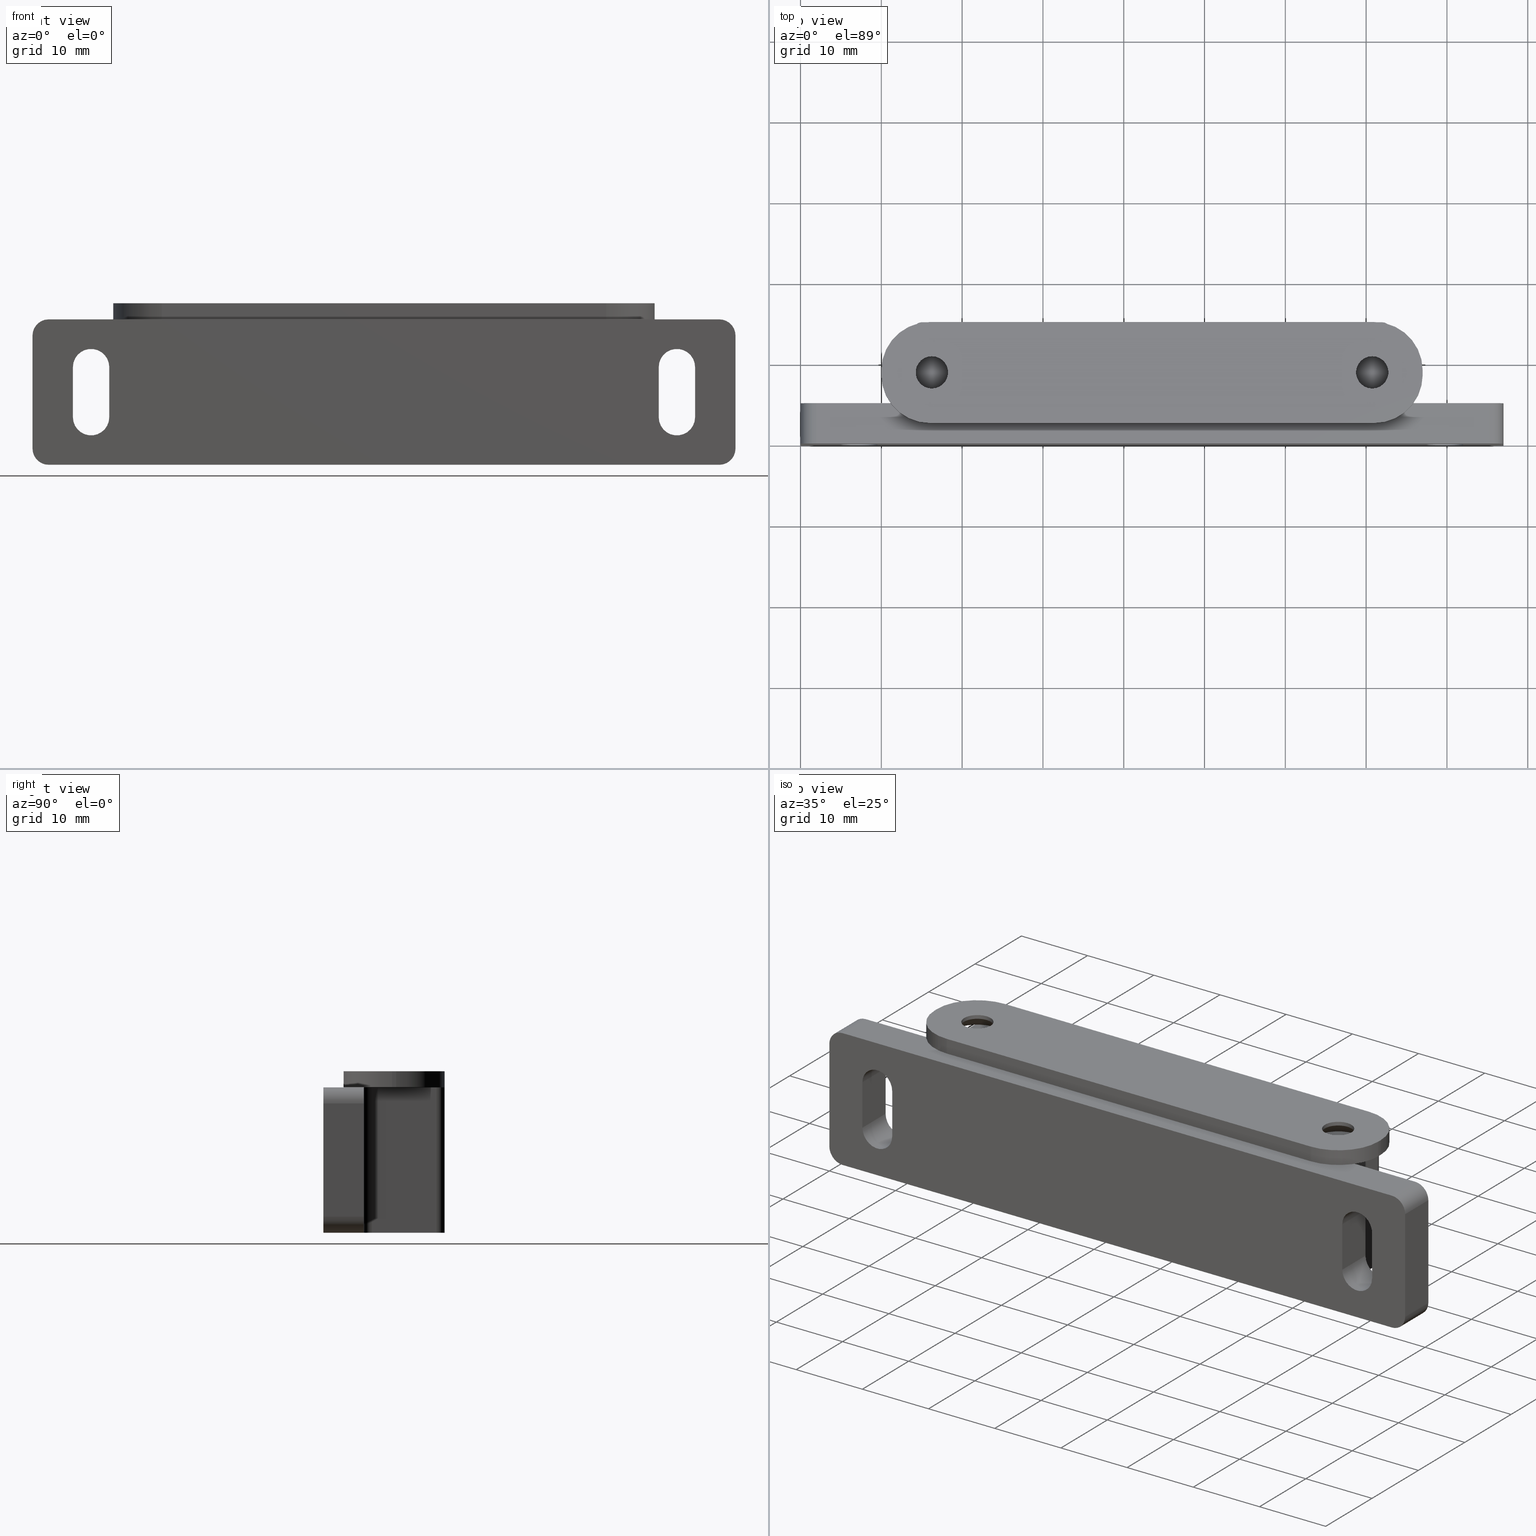
[diagram: canonical four-view strip — front | top / right | iso, engineering-drawing reading convention]
A machine part, canonical four-view strip (front | top / right | iso — engineering-drawing reading convention). The complete STEP part file that produces these views, byte-faithful:
ISO-10303-21;
HEADER;
/* Generated by software containing ST-Developer
 * from STEP Tools, Inc. (www.steptools.com) 
 */

FILE_DESCRIPTION(
/* description */ (''),
/* implementation_level */ '2;1');

FILE_NAME(
/* name */ 
'Q:\\Catalogo\\2_Accessori Dierre\\Per Download Web e catalogo cartace
o\\CATALOGO ACCESSORI PER RIPARI\\PAGINA 70\\CMGPE0000006.stp',
/* time_stamp */ '2018-11-07T12:01:39+01:00',
/* author */ ('fzagni'),
/* organization */ (''),
/* preprocessor_version */ 'ST-DEVELOPER v16.1',
/* originating_system */ 'Autodesk Inventor 2016',
/* authorisation */ '');

FILE_SCHEMA (('AUTOMOTIVE_DESIGN { 1 0 10303 214 3 1 1 }'));
ENDSEC;

DATA;
#10=MECHANICAL_DESIGN_GEOMETRIC_PRESENTATION_REPRESENTATION('',(#25,#26),
#1292);
#11=ITEM_DEFINED_TRANSFORMATION($,$,#755,#836);
#12=ITEM_DEFINED_TRANSFORMATION($,$,#806,#837);
#13=(
REPRESENTATION_RELATIONSHIP($,$,#1307,#1309)
REPRESENTATION_RELATIONSHIP_WITH_TRANSFORMATION(#11)
SHAPE_REPRESENTATION_RELATIONSHIP()
);
#14=(
REPRESENTATION_RELATIONSHIP($,$,#1308,#1309)
REPRESENTATION_RELATIONSHIP_WITH_TRANSFORMATION(#12)
SHAPE_REPRESENTATION_RELATIONSHIP()
);
#15=CONTEXT_DEPENDENT_SHAPE_REPRESENTATION(#13,#1305);
#16=CONTEXT_DEPENDENT_SHAPE_REPRESENTATION(#14,#1306);
#17=NEXT_ASSEMBLY_USAGE_OCCURRENCE('440000006615:1','440000006615:1',
'440000006615:1',#1313,#1311,'440000006615:1');
#18=NEXT_ASSEMBLY_USAGE_OCCURRENCE('440000006616:1','440000006616:1',
'440000006616:1',#1313,#1312,'440000006616:1');
#19=CONICAL_SURFACE('',#807,2.75,45.);
#20=CONICAL_SURFACE('',#812,2.75,45.);
#21=SHAPE_REPRESENTATION_RELATIONSHIP('SRR','None',#1307,#23);
#22=SHAPE_REPRESENTATION_RELATIONSHIP('SRR','None',#1308,#24);
#23=ADVANCED_BREP_SHAPE_REPRESENTATION('',(#27),#1289);
#24=ADVANCED_BREP_SHAPE_REPRESENTATION('',(#28),#1290);
#25=STYLED_ITEM('',(#1326),#27);
#26=STYLED_ITEM('',(#1327),#28);
#27=MANIFOLD_SOLID_BREP('Solido1',#753);
#28=MANIFOLD_SOLID_BREP('Solido1',#754);
#29=FACE_BOUND('',#104,.T.);
#30=FACE_BOUND('',#110,.T.);
#31=FACE_BOUND('',#129,.T.);
#32=FACE_BOUND('',#130,.T.);
#33=FACE_BOUND('',#132,.T.);
#34=FACE_BOUND('',#134,.T.);
#35=FACE_BOUND('',#136,.T.);
#36=FACE_BOUND('',#138,.T.);
#37=FACE_BOUND('',#142,.T.);
#38=FACE_BOUND('',#143,.T.);
#39=FACE_BOUND('',#151,.T.);
#40=FACE_BOUND('',#152,.T.);
#41=PLANE('',#759);
#42=PLANE('',#764);
#43=PLANE('',#770);
#44=PLANE('',#778);
#45=PLANE('',#779);
#46=PLANE('',#786);
#47=PLANE('',#788);
#48=PLANE('',#793);
#49=PLANE('',#796);
#50=PLANE('',#799);
#51=PLANE('',#802);
#52=PLANE('',#803);
#53=PLANE('',#804);
#54=PLANE('',#805);
#55=PLANE('',#820);
#56=PLANE('',#821);
#57=PLANE('',#827);
#58=PLANE('',#830);
#59=PLANE('',#833);
#60=PLANE('',#834);
#61=FACE_OUTER_BOUND('',#101,.T.);
#62=FACE_OUTER_BOUND('',#102,.T.);
#63=FACE_OUTER_BOUND('',#103,.T.);
#64=FACE_OUTER_BOUND('',#105,.T.);
#65=FACE_OUTER_BOUND('',#106,.T.);
#66=FACE_OUTER_BOUND('',#107,.T.);
#67=FACE_OUTER_BOUND('',#108,.T.);
#68=FACE_OUTER_BOUND('',#109,.T.);
#69=FACE_OUTER_BOUND('',#111,.T.);
#70=FACE_OUTER_BOUND('',#112,.T.);
#71=FACE_OUTER_BOUND('',#113,.T.);
#72=FACE_OUTER_BOUND('',#114,.T.);
#73=FACE_OUTER_BOUND('',#115,.T.);
#74=FACE_OUTER_BOUND('',#116,.T.);
#75=FACE_OUTER_BOUND('',#117,.T.);
#76=FACE_OUTER_BOUND('',#118,.T.);
#77=FACE_OUTER_BOUND('',#119,.T.);
#78=FACE_OUTER_BOUND('',#120,.T.);
#79=FACE_OUTER_BOUND('',#121,.T.);
#80=FACE_OUTER_BOUND('',#122,.T.);
#81=FACE_OUTER_BOUND('',#123,.T.);
#82=FACE_OUTER_BOUND('',#124,.T.);
#83=FACE_OUTER_BOUND('',#125,.T.);
#84=FACE_OUTER_BOUND('',#126,.T.);
#85=FACE_OUTER_BOUND('',#127,.T.);
#86=FACE_OUTER_BOUND('',#128,.T.);
#87=FACE_OUTER_BOUND('',#131,.T.);
#88=FACE_OUTER_BOUND('',#133,.T.);
#89=FACE_OUTER_BOUND('',#135,.T.);
#90=FACE_OUTER_BOUND('',#137,.T.);
#91=FACE_OUTER_BOUND('',#139,.T.);
#92=FACE_OUTER_BOUND('',#140,.T.);
#93=FACE_OUTER_BOUND('',#141,.T.);
#94=FACE_OUTER_BOUND('',#144,.T.);
#95=FACE_OUTER_BOUND('',#145,.T.);
#96=FACE_OUTER_BOUND('',#146,.T.);
#97=FACE_OUTER_BOUND('',#147,.T.);
#98=FACE_OUTER_BOUND('',#148,.T.);
#99=FACE_OUTER_BOUND('',#149,.T.);
#100=FACE_OUTER_BOUND('',#150,.T.);
#101=EDGE_LOOP('',(#491,#492,#493,#494));
#102=EDGE_LOOP('',(#495,#496,#497,#498,#499,#500,#501,#502,#503,#504,#505,
#506));
#103=EDGE_LOOP('',(#507,#508,#509,#510,#511,#512));
#104=EDGE_LOOP('',(#513,#514,#515,#516));
#105=EDGE_LOOP('',(#517,#518,#519,#520));
#106=EDGE_LOOP('',(#521,#522,#523,#524,#525,#526,#527,#528,#529,#530,#531,
#532));
#107=EDGE_LOOP('',(#533,#534,#535,#536));
#108=EDGE_LOOP('',(#537,#538,#539,#540));
#109=EDGE_LOOP('',(#541,#542,#543,#544,#545,#546));
#110=EDGE_LOOP('',(#547,#548,#549,#550));
#111=EDGE_LOOP('',(#551,#552,#553,#554));
#112=EDGE_LOOP('',(#555,#556,#557,#558));
#113=EDGE_LOOP('',(#559,#560,#561,#562));
#114=EDGE_LOOP('',(#563,#564,#565,#566));
#115=EDGE_LOOP('',(#567,#568,#569,#570));
#116=EDGE_LOOP('',(#571,#572,#573,#574));
#117=EDGE_LOOP('',(#575,#576,#577,#578));
#118=EDGE_LOOP('',(#579,#580,#581,#582));
#119=EDGE_LOOP('',(#583,#584,#585,#586));
#120=EDGE_LOOP('',(#587,#588,#589,#590));
#121=EDGE_LOOP('',(#591,#592,#593,#594));
#122=EDGE_LOOP('',(#595,#596,#597,#598));
#123=EDGE_LOOP('',(#599,#600,#601,#602));
#124=EDGE_LOOP('',(#603,#604,#605,#606));
#125=EDGE_LOOP('',(#607,#608,#609,#610));
#126=EDGE_LOOP('',(#611,#612,#613,#614));
#127=EDGE_LOOP('',(#615,#616,#617,#618));
#128=EDGE_LOOP('',(#619,#620,#621,#622,#623,#624,#625,#626));
#129=EDGE_LOOP('',(#627,#628,#629,#630));
#130=EDGE_LOOP('',(#631,#632,#633,#634));
#131=EDGE_LOOP('',(#635));
#132=EDGE_LOOP('',(#636));
#133=EDGE_LOOP('',(#637));
#134=EDGE_LOOP('',(#638));
#135=EDGE_LOOP('',(#639));
#136=EDGE_LOOP('',(#640));
#137=EDGE_LOOP('',(#641));
#138=EDGE_LOOP('',(#642));
#139=EDGE_LOOP('',(#643,#644,#645,#646));
#140=EDGE_LOOP('',(#647,#648,#649,#650));
#141=EDGE_LOOP('',(#651,#652,#653,#654,#655,#656,#657,#658));
#142=EDGE_LOOP('',(#659));
#143=EDGE_LOOP('',(#660));
#144=EDGE_LOOP('',(#661,#662,#663,#664));
#145=EDGE_LOOP('',(#665,#666,#667,#668));
#146=EDGE_LOOP('',(#669,#670,#671,#672));
#147=EDGE_LOOP('',(#673,#674,#675,#676));
#148=EDGE_LOOP('',(#677,#678,#679,#680));
#149=EDGE_LOOP('',(#681,#682,#683,#684));
#150=EDGE_LOOP('',(#685,#686,#687,#688,#689,#690,#691,#692));
#151=EDGE_LOOP('',(#693));
#152=EDGE_LOOP('',(#694));
#153=LINE('',#1074,#217);
#154=LINE('',#1077,#218);
#155=LINE('',#1080,#219);
#156=LINE('',#1084,#220);
#157=LINE('',#1088,#221);
#158=LINE('',#1092,#222);
#159=LINE('',#1096,#223);
#160=LINE('',#1098,#224);
#161=LINE('',#1099,#225);
#162=LINE('',#1102,#226);
#163=LINE('',#1106,#227);
#164=LINE('',#1107,#228);
#165=LINE('',#1112,#229);
#166=LINE('',#1115,#230);
#167=LINE('',#1120,#231);
#168=LINE('',#1121,#232);
#169=LINE('',#1124,#233);
#170=LINE('',#1126,#234);
#171=LINE('',#1128,#235);
#172=LINE('',#1132,#236);
#173=LINE('',#1136,#237);
#174=LINE('',#1140,#238);
#175=LINE('',#1146,#239);
#176=LINE('',#1150,#240);
#177=LINE('',#1152,#241);
#178=LINE('',#1153,#242);
#179=LINE('',#1155,#243);
#180=LINE('',#1161,#244);
#181=LINE('',#1164,#245);
#182=LINE('',#1168,#246);
#183=LINE('',#1169,#247);
#184=LINE('',#1171,#248);
#185=LINE('',#1173,#249);
#186=LINE('',#1175,#250);
#187=LINE('',#1177,#251);
#188=LINE('',#1183,#252);
#189=LINE('',#1184,#253);
#190=LINE('',#1187,#254);
#191=LINE('',#1188,#255);
#192=LINE('',#1192,#256);
#193=LINE('',#1194,#257);
#194=LINE('',#1199,#258);
#195=LINE('',#1200,#259);
#196=LINE('',#1203,#260);
#197=LINE('',#1204,#261);
#198=LINE('',#1208,#262);
#199=LINE('',#1210,#263);
#200=LINE('',#1212,#264);
#201=LINE('',#1237,#265);
#202=LINE('',#1240,#266);
#203=LINE('',#1243,#267);
#204=LINE('',#1245,#268);
#205=LINE('',#1246,#269);
#206=LINE('',#1249,#270);
#207=LINE('',#1253,#271);
#208=LINE('',#1257,#272);
#209=LINE('',#1262,#273);
#210=LINE('',#1265,#274);
#211=LINE('',#1266,#275);
#212=LINE('',#1271,#276);
#213=LINE('',#1272,#277);
#214=LINE('',#1274,#278);
#215=LINE('',#1278,#279);
#216=LINE('',#1280,#280);
#217=VECTOR('',#844,5.);
#218=VECTOR('',#847,5.);
#219=VECTOR('',#850,11.);
#220=VECTOR('',#853,7.99999999999998);
#221=VECTOR('',#856,57.);
#222=VECTOR('',#859,8.);
#223=VECTOR('',#862,11.);
#224=VECTOR('',#863,5.);
#225=VECTOR('',#864,83.);
#226=VECTOR('',#867,14.);
#227=VECTOR('',#870,11.);
#228=VECTOR('',#871,18.);
#229=VECTOR('',#874,6.2);
#230=VECTOR('',#877,6.2);
#231=VECTOR('',#882,5.);
#232=VECTOR('',#883,5.);
#233=VECTOR('',#886,83.);
#234=VECTOR('',#887,5.);
#235=VECTOR('',#888,11.);
#236=VECTOR('',#891,8.);
#237=VECTOR('',#894,57.);
#238=VECTOR('',#897,7.99999999999998);
#239=VECTOR('',#904,5.);
#240=VECTOR('',#909,14.);
#241=VECTOR('',#910,5.);
#242=VECTOR('',#911,14.);
#243=VECTOR('',#914,18.);
#244=VECTOR('',#919,6.2);
#245=VECTOR('',#922,6.2);
#246=VECTOR('',#929,18.);
#247=VECTOR('',#930,18.);
#248=VECTOR('',#933,18.);
#249=VECTOR('',#936,18.);
#250=VECTOR('',#939,18.);
#251=VECTOR('',#942,18.);
#252=VECTOR('',#949,5.);
#253=VECTOR('',#950,5.);
#254=VECTOR('',#953,6.2);
#255=VECTOR('',#954,5.);
#256=VECTOR('',#959,5.);
#257=VECTOR('',#962,6.2);
#258=VECTOR('',#967,5.);
#259=VECTOR('',#968,5.);
#260=VECTOR('',#971,6.2);
#261=VECTOR('',#972,5.);
#262=VECTOR('',#977,5.);
#263=VECTOR('',#980,6.2);
#264=VECTOR('',#983,14.);
#265=VECTOR('',#1014,2.);
#266=VECTOR('',#1017,2.);
#267=VECTOR('',#1020,0.499999999999998);
#268=VECTOR('',#1021,2.);
#269=VECTOR('',#1022,0.499999999999998);
#270=VECTOR('',#1025,55.);
#271=VECTOR('',#1028,0.499999999999998);
#272=VECTOR('',#1031,55.);
#273=VECTOR('',#1038,2.);
#274=VECTOR('',#1041,2.);
#275=VECTOR('',#1042,55.);
#276=VECTOR('',#1047,2.);
#277=VECTOR('',#1048,2.);
#278=VECTOR('',#1051,55.);
#279=VECTOR('',#1056,2.);
#280=VECTOR('',#1059,0.499999999999998);
#281=CIRCLE('',#757,2.);
#282=CIRCLE('',#758,2.);
#283=CIRCLE('',#760,1.);
#284=CIRCLE('',#761,1.);
#285=CIRCLE('',#762,1.);
#286=CIRCLE('',#763,1.);
#287=CIRCLE('',#765,2.);
#288=CIRCLE('',#766,2.25);
#289=CIRCLE('',#767,2.25);
#290=CIRCLE('',#769,2.);
#291=CIRCLE('',#771,1.);
#292=CIRCLE('',#772,1.);
#293=CIRCLE('',#773,1.);
#294=CIRCLE('',#774,1.);
#295=CIRCLE('',#776,2.);
#296=CIRCLE('',#777,2.);
#297=CIRCLE('',#780,2.);
#298=CIRCLE('',#781,2.25);
#299=CIRCLE('',#782,2.25);
#300=CIRCLE('',#784,2.);
#301=CIRCLE('',#792,2.25);
#302=CIRCLE('',#795,2.25);
#303=CIRCLE('',#798,2.25);
#304=CIRCLE('',#801,2.25);
#305=CIRCLE('',#808,3.5);
#306=CIRCLE('',#809,2.);
#307=CIRCLE('',#811,2.);
#308=CIRCLE('',#813,3.5);
#309=CIRCLE('',#814,2.);
#310=CIRCLE('',#816,2.);
#311=CIRCLE('',#818,6.);
#312=CIRCLE('',#819,6.);
#313=CIRCLE('',#822,6.);
#314=CIRCLE('',#823,6.);
#315=CIRCLE('',#824,6.);
#316=CIRCLE('',#826,6.);
#317=CIRCLE('',#829,6.);
#318=CIRCLE('',#832,6.);
#319=VERTEX_POINT('',#1070);
#320=VERTEX_POINT('',#1071);
#321=VERTEX_POINT('',#1073);
#322=VERTEX_POINT('',#1075);
#323=VERTEX_POINT('',#1079);
#324=VERTEX_POINT('',#1081);
#325=VERTEX_POINT('',#1083);
#326=VERTEX_POINT('',#1085);
#327=VERTEX_POINT('',#1087);
#328=VERTEX_POINT('',#1089);
#329=VERTEX_POINT('',#1091);
#330=VERTEX_POINT('',#1093);
#331=VERTEX_POINT('',#1095);
#332=VERTEX_POINT('',#1097);
#333=VERTEX_POINT('',#1101);
#334=VERTEX_POINT('',#1103);
#335=VERTEX_POINT('',#1105);
#336=VERTEX_POINT('',#1108);
#337=VERTEX_POINT('',#1109);
#338=VERTEX_POINT('',#1111);
#339=VERTEX_POINT('',#1113);
#340=VERTEX_POINT('',#1117);
#341=VERTEX_POINT('',#1118);
#342=VERTEX_POINT('',#1123);
#343=VERTEX_POINT('',#1125);
#344=VERTEX_POINT('',#1127);
#345=VERTEX_POINT('',#1129);
#346=VERTEX_POINT('',#1131);
#347=VERTEX_POINT('',#1133);
#348=VERTEX_POINT('',#1135);
#349=VERTEX_POINT('',#1137);
#350=VERTEX_POINT('',#1139);
#351=VERTEX_POINT('',#1143);
#352=VERTEX_POINT('',#1145);
#353=VERTEX_POINT('',#1149);
#354=VERTEX_POINT('',#1151);
#355=VERTEX_POINT('',#1157);
#356=VERTEX_POINT('',#1158);
#357=VERTEX_POINT('',#1160);
#358=VERTEX_POINT('',#1162);
#359=VERTEX_POINT('',#1180);
#360=VERTEX_POINT('',#1181);
#361=VERTEX_POINT('',#1186);
#362=VERTEX_POINT('',#1190);
#363=VERTEX_POINT('',#1196);
#364=VERTEX_POINT('',#1197);
#365=VERTEX_POINT('',#1202);
#366=VERTEX_POINT('',#1206);
#367=VERTEX_POINT('',#1217);
#368=VERTEX_POINT('',#1219);
#369=VERTEX_POINT('',#1222);
#370=VERTEX_POINT('',#1225);
#371=VERTEX_POINT('',#1227);
#372=VERTEX_POINT('',#1230);
#373=VERTEX_POINT('',#1233);
#374=VERTEX_POINT('',#1234);
#375=VERTEX_POINT('',#1236);
#376=VERTEX_POINT('',#1238);
#377=VERTEX_POINT('',#1242);
#378=VERTEX_POINT('',#1244);
#379=VERTEX_POINT('',#1248);
#380=VERTEX_POINT('',#1250);
#381=VERTEX_POINT('',#1252);
#382=VERTEX_POINT('',#1254);
#383=VERTEX_POINT('',#1256);
#384=VERTEX_POINT('',#1260);
#385=VERTEX_POINT('',#1264);
#386=VERTEX_POINT('',#1268);
#387=VERTEX_POINT('',#1269);
#388=VERTEX_POINT('',#1276);
#389=EDGE_CURVE('',#319,#320,#281,.T.);
#390=EDGE_CURVE('',#320,#321,#153,.T.);
#391=EDGE_CURVE('',#321,#322,#282,.T.);
#392=EDGE_CURVE('',#322,#319,#154,.T.);
#393=EDGE_CURVE('',#323,#322,#155,.T.);
#394=EDGE_CURVE('',#324,#323,#283,.T.);
#395=EDGE_CURVE('',#325,#324,#156,.T.);
#396=EDGE_CURVE('',#326,#325,#284,.T.);
#397=EDGE_CURVE('',#327,#326,#157,.T.);
#398=EDGE_CURVE('',#328,#327,#285,.T.);
#399=EDGE_CURVE('',#329,#328,#158,.T.);
#400=EDGE_CURVE('',#330,#329,#286,.T.);
#401=EDGE_CURVE('',#331,#330,#159,.T.);
#402=EDGE_CURVE('',#332,#331,#160,.T.);
#403=EDGE_CURVE('',#319,#332,#161,.T.);
#404=EDGE_CURVE('',#321,#333,#162,.T.);
#405=EDGE_CURVE('',#334,#333,#287,.T.);
#406=EDGE_CURVE('',#335,#334,#163,.T.);
#407=EDGE_CURVE('',#323,#335,#164,.T.);
#408=EDGE_CURVE('',#336,#337,#288,.T.);
#409=EDGE_CURVE('',#337,#338,#165,.T.);
#410=EDGE_CURVE('',#338,#339,#289,.T.);
#411=EDGE_CURVE('',#339,#336,#166,.T.);
#412=EDGE_CURVE('',#340,#341,#290,.T.);
#413=EDGE_CURVE('',#341,#334,#167,.T.);
#414=EDGE_CURVE('',#333,#340,#168,.T.);
#415=EDGE_CURVE('',#341,#342,#169,.T.);
#416=EDGE_CURVE('',#343,#342,#170,.T.);
#417=EDGE_CURVE('',#343,#344,#171,.T.);
#418=EDGE_CURVE('',#345,#344,#291,.T.);
#419=EDGE_CURVE('',#345,#346,#172,.T.);
#420=EDGE_CURVE('',#347,#346,#292,.T.);
#421=EDGE_CURVE('',#347,#348,#173,.T.);
#422=EDGE_CURVE('',#349,#348,#293,.T.);
#423=EDGE_CURVE('',#349,#350,#174,.T.);
#424=EDGE_CURVE('',#335,#350,#294,.T.);
#425=EDGE_CURVE('',#331,#351,#295,.T.);
#426=EDGE_CURVE('',#351,#352,#175,.T.);
#427=EDGE_CURVE('',#352,#332,#296,.T.);
#428=EDGE_CURVE('',#351,#353,#176,.T.);
#429=EDGE_CURVE('',#354,#353,#177,.T.);
#430=EDGE_CURVE('',#352,#354,#178,.T.);
#431=EDGE_CURVE('',#344,#330,#179,.T.);
#432=EDGE_CURVE('',#353,#343,#297,.T.);
#433=EDGE_CURVE('',#355,#356,#298,.T.);
#434=EDGE_CURVE('',#356,#357,#180,.T.);
#435=EDGE_CURVE('',#357,#358,#299,.T.);
#436=EDGE_CURVE('',#358,#355,#181,.T.);
#437=EDGE_CURVE('',#342,#354,#300,.T.);
#438=EDGE_CURVE('',#348,#326,#182,.T.);
#439=EDGE_CURVE('',#325,#349,#183,.T.);
#440=EDGE_CURVE('',#350,#324,#184,.T.);
#441=EDGE_CURVE('',#329,#345,#185,.T.);
#442=EDGE_CURVE('',#346,#328,#186,.T.);
#443=EDGE_CURVE('',#327,#347,#187,.T.);
#444=EDGE_CURVE('',#359,#360,#301,.T.);
#445=EDGE_CURVE('',#358,#359,#188,.T.);
#446=EDGE_CURVE('',#357,#360,#189,.T.);
#447=EDGE_CURVE('',#360,#361,#190,.T.);
#448=EDGE_CURVE('',#356,#361,#191,.T.);
#449=EDGE_CURVE('',#361,#362,#302,.T.);
#450=EDGE_CURVE('',#355,#362,#192,.T.);
#451=EDGE_CURVE('',#362,#359,#193,.T.);
#452=EDGE_CURVE('',#363,#364,#303,.T.);
#453=EDGE_CURVE('',#339,#363,#194,.T.);
#454=EDGE_CURVE('',#338,#364,#195,.T.);
#455=EDGE_CURVE('',#364,#365,#196,.T.);
#456=EDGE_CURVE('',#337,#365,#197,.T.);
#457=EDGE_CURVE('',#365,#366,#304,.T.);
#458=EDGE_CURVE('',#336,#366,#198,.T.);
#459=EDGE_CURVE('',#366,#363,#199,.T.);
#460=EDGE_CURVE('',#320,#340,#200,.T.);
#461=EDGE_CURVE('',#367,#367,#305,.T.);
#462=EDGE_CURVE('',#368,#368,#306,.T.);
#463=EDGE_CURVE('',#369,#369,#307,.T.);
#464=EDGE_CURVE('',#370,#370,#308,.T.);
#465=EDGE_CURVE('',#371,#371,#309,.T.);
#466=EDGE_CURVE('',#372,#372,#310,.T.);
#467=EDGE_CURVE('',#373,#374,#311,.T.);
#468=EDGE_CURVE('',#374,#375,#201,.T.);
#469=EDGE_CURVE('',#375,#376,#312,.T.);
#470=EDGE_CURVE('',#376,#373,#202,.T.);
#471=EDGE_CURVE('',#376,#377,#203,.T.);
#472=EDGE_CURVE('',#378,#377,#204,.T.);
#473=EDGE_CURVE('',#373,#378,#205,.T.);
#474=EDGE_CURVE('',#379,#375,#206,.T.);
#475=EDGE_CURVE('',#380,#379,#313,.T.);
#476=EDGE_CURVE('',#381,#380,#207,.T.);
#477=EDGE_CURVE('',#382,#381,#314,.T.);
#478=EDGE_CURVE('',#383,#382,#208,.T.);
#479=EDGE_CURVE('',#377,#383,#315,.T.);
#480=EDGE_CURVE('',#384,#378,#316,.T.);
#481=EDGE_CURVE('',#383,#384,#209,.T.);
#482=EDGE_CURVE('',#385,#382,#210,.T.);
#483=EDGE_CURVE('',#384,#385,#211,.T.);
#484=EDGE_CURVE('',#386,#387,#317,.T.);
#485=EDGE_CURVE('',#387,#380,#212,.T.);
#486=EDGE_CURVE('',#379,#386,#213,.T.);
#487=EDGE_CURVE('',#386,#374,#214,.T.);
#488=EDGE_CURVE('',#388,#385,#318,.T.);
#489=EDGE_CURVE('',#381,#388,#215,.T.);
#490=EDGE_CURVE('',#388,#387,#216,.T.);
#491=ORIENTED_EDGE('',*,*,#389,.T.);
#492=ORIENTED_EDGE('',*,*,#390,.T.);
#493=ORIENTED_EDGE('',*,*,#391,.T.);
#494=ORIENTED_EDGE('',*,*,#392,.T.);
#495=ORIENTED_EDGE('',*,*,#392,.F.);
#496=ORIENTED_EDGE('',*,*,#393,.F.);
#497=ORIENTED_EDGE('',*,*,#394,.F.);
#498=ORIENTED_EDGE('',*,*,#395,.F.);
#499=ORIENTED_EDGE('',*,*,#396,.F.);
#500=ORIENTED_EDGE('',*,*,#397,.F.);
#501=ORIENTED_EDGE('',*,*,#398,.F.);
#502=ORIENTED_EDGE('',*,*,#399,.F.);
#503=ORIENTED_EDGE('',*,*,#400,.F.);
#504=ORIENTED_EDGE('',*,*,#401,.F.);
#505=ORIENTED_EDGE('',*,*,#402,.F.);
#506=ORIENTED_EDGE('',*,*,#403,.F.);
#507=ORIENTED_EDGE('',*,*,#391,.F.);
#508=ORIENTED_EDGE('',*,*,#404,.T.);
#509=ORIENTED_EDGE('',*,*,#405,.F.);
#510=ORIENTED_EDGE('',*,*,#406,.F.);
#511=ORIENTED_EDGE('',*,*,#407,.F.);
#512=ORIENTED_EDGE('',*,*,#393,.T.);
#513=ORIENTED_EDGE('',*,*,#408,.T.);
#514=ORIENTED_EDGE('',*,*,#409,.T.);
#515=ORIENTED_EDGE('',*,*,#410,.T.);
#516=ORIENTED_EDGE('',*,*,#411,.T.);
#517=ORIENTED_EDGE('',*,*,#412,.T.);
#518=ORIENTED_EDGE('',*,*,#413,.T.);
#519=ORIENTED_EDGE('',*,*,#405,.T.);
#520=ORIENTED_EDGE('',*,*,#414,.T.);
#521=ORIENTED_EDGE('',*,*,#413,.F.);
#522=ORIENTED_EDGE('',*,*,#415,.T.);
#523=ORIENTED_EDGE('',*,*,#416,.F.);
#524=ORIENTED_EDGE('',*,*,#417,.T.);
#525=ORIENTED_EDGE('',*,*,#418,.F.);
#526=ORIENTED_EDGE('',*,*,#419,.T.);
#527=ORIENTED_EDGE('',*,*,#420,.F.);
#528=ORIENTED_EDGE('',*,*,#421,.T.);
#529=ORIENTED_EDGE('',*,*,#422,.F.);
#530=ORIENTED_EDGE('',*,*,#423,.T.);
#531=ORIENTED_EDGE('',*,*,#424,.F.);
#532=ORIENTED_EDGE('',*,*,#406,.T.);
#533=ORIENTED_EDGE('',*,*,#425,.T.);
#534=ORIENTED_EDGE('',*,*,#426,.T.);
#535=ORIENTED_EDGE('',*,*,#427,.T.);
#536=ORIENTED_EDGE('',*,*,#402,.T.);
#537=ORIENTED_EDGE('',*,*,#426,.F.);
#538=ORIENTED_EDGE('',*,*,#428,.T.);
#539=ORIENTED_EDGE('',*,*,#429,.F.);
#540=ORIENTED_EDGE('',*,*,#430,.F.);
#541=ORIENTED_EDGE('',*,*,#425,.F.);
#542=ORIENTED_EDGE('',*,*,#401,.T.);
#543=ORIENTED_EDGE('',*,*,#431,.F.);
#544=ORIENTED_EDGE('',*,*,#417,.F.);
#545=ORIENTED_EDGE('',*,*,#432,.F.);
#546=ORIENTED_EDGE('',*,*,#428,.F.);
#547=ORIENTED_EDGE('',*,*,#433,.T.);
#548=ORIENTED_EDGE('',*,*,#434,.T.);
#549=ORIENTED_EDGE('',*,*,#435,.T.);
#550=ORIENTED_EDGE('',*,*,#436,.T.);
#551=ORIENTED_EDGE('',*,*,#432,.T.);
#552=ORIENTED_EDGE('',*,*,#416,.T.);
#553=ORIENTED_EDGE('',*,*,#437,.T.);
#554=ORIENTED_EDGE('',*,*,#429,.T.);
#555=ORIENTED_EDGE('',*,*,#422,.T.);
#556=ORIENTED_EDGE('',*,*,#438,.T.);
#557=ORIENTED_EDGE('',*,*,#396,.T.);
#558=ORIENTED_EDGE('',*,*,#439,.T.);
#559=ORIENTED_EDGE('',*,*,#439,.F.);
#560=ORIENTED_EDGE('',*,*,#395,.T.);
#561=ORIENTED_EDGE('',*,*,#440,.F.);
#562=ORIENTED_EDGE('',*,*,#423,.F.);
#563=ORIENTED_EDGE('',*,*,#400,.T.);
#564=ORIENTED_EDGE('',*,*,#441,.T.);
#565=ORIENTED_EDGE('',*,*,#418,.T.);
#566=ORIENTED_EDGE('',*,*,#431,.T.);
#567=ORIENTED_EDGE('',*,*,#441,.F.);
#568=ORIENTED_EDGE('',*,*,#399,.T.);
#569=ORIENTED_EDGE('',*,*,#442,.F.);
#570=ORIENTED_EDGE('',*,*,#419,.F.);
#571=ORIENTED_EDGE('',*,*,#420,.T.);
#572=ORIENTED_EDGE('',*,*,#442,.T.);
#573=ORIENTED_EDGE('',*,*,#398,.T.);
#574=ORIENTED_EDGE('',*,*,#443,.T.);
#575=ORIENTED_EDGE('',*,*,#394,.T.);
#576=ORIENTED_EDGE('',*,*,#407,.T.);
#577=ORIENTED_EDGE('',*,*,#424,.T.);
#578=ORIENTED_EDGE('',*,*,#440,.T.);
#579=ORIENTED_EDGE('',*,*,#444,.F.);
#580=ORIENTED_EDGE('',*,*,#445,.F.);
#581=ORIENTED_EDGE('',*,*,#435,.F.);
#582=ORIENTED_EDGE('',*,*,#446,.T.);
#583=ORIENTED_EDGE('',*,*,#447,.F.);
#584=ORIENTED_EDGE('',*,*,#446,.F.);
#585=ORIENTED_EDGE('',*,*,#434,.F.);
#586=ORIENTED_EDGE('',*,*,#448,.T.);
#587=ORIENTED_EDGE('',*,*,#449,.F.);
#588=ORIENTED_EDGE('',*,*,#448,.F.);
#589=ORIENTED_EDGE('',*,*,#433,.F.);
#590=ORIENTED_EDGE('',*,*,#450,.T.);
#591=ORIENTED_EDGE('',*,*,#451,.F.);
#592=ORIENTED_EDGE('',*,*,#450,.F.);
#593=ORIENTED_EDGE('',*,*,#436,.F.);
#594=ORIENTED_EDGE('',*,*,#445,.T.);
#595=ORIENTED_EDGE('',*,*,#452,.F.);
#596=ORIENTED_EDGE('',*,*,#453,.F.);
#597=ORIENTED_EDGE('',*,*,#410,.F.);
#598=ORIENTED_EDGE('',*,*,#454,.T.);
#599=ORIENTED_EDGE('',*,*,#455,.F.);
#600=ORIENTED_EDGE('',*,*,#454,.F.);
#601=ORIENTED_EDGE('',*,*,#409,.F.);
#602=ORIENTED_EDGE('',*,*,#456,.T.);
#603=ORIENTED_EDGE('',*,*,#457,.F.);
#604=ORIENTED_EDGE('',*,*,#456,.F.);
#605=ORIENTED_EDGE('',*,*,#408,.F.);
#606=ORIENTED_EDGE('',*,*,#458,.T.);
#607=ORIENTED_EDGE('',*,*,#459,.F.);
#608=ORIENTED_EDGE('',*,*,#458,.F.);
#609=ORIENTED_EDGE('',*,*,#411,.F.);
#610=ORIENTED_EDGE('',*,*,#453,.T.);
#611=ORIENTED_EDGE('',*,*,#390,.F.);
#612=ORIENTED_EDGE('',*,*,#460,.T.);
#613=ORIENTED_EDGE('',*,*,#414,.F.);
#614=ORIENTED_EDGE('',*,*,#404,.F.);
#615=ORIENTED_EDGE('',*,*,#438,.F.);
#616=ORIENTED_EDGE('',*,*,#421,.F.);
#617=ORIENTED_EDGE('',*,*,#443,.F.);
#618=ORIENTED_EDGE('',*,*,#397,.T.);
#619=ORIENTED_EDGE('',*,*,#389,.F.);
#620=ORIENTED_EDGE('',*,*,#403,.T.);
#621=ORIENTED_EDGE('',*,*,#427,.F.);
#622=ORIENTED_EDGE('',*,*,#430,.T.);
#623=ORIENTED_EDGE('',*,*,#437,.F.);
#624=ORIENTED_EDGE('',*,*,#415,.F.);
#625=ORIENTED_EDGE('',*,*,#412,.F.);
#626=ORIENTED_EDGE('',*,*,#460,.F.);
#627=ORIENTED_EDGE('',*,*,#449,.T.);
#628=ORIENTED_EDGE('',*,*,#451,.T.);
#629=ORIENTED_EDGE('',*,*,#444,.T.);
#630=ORIENTED_EDGE('',*,*,#447,.T.);
#631=ORIENTED_EDGE('',*,*,#457,.T.);
#632=ORIENTED_EDGE('',*,*,#459,.T.);
#633=ORIENTED_EDGE('',*,*,#452,.T.);
#634=ORIENTED_EDGE('',*,*,#455,.T.);
#635=ORIENTED_EDGE('',*,*,#461,.F.);
#636=ORIENTED_EDGE('',*,*,#462,.F.);
#637=ORIENTED_EDGE('',*,*,#463,.F.);
#638=ORIENTED_EDGE('',*,*,#462,.T.);
#639=ORIENTED_EDGE('',*,*,#464,.F.);
#640=ORIENTED_EDGE('',*,*,#465,.F.);
#641=ORIENTED_EDGE('',*,*,#466,.F.);
#642=ORIENTED_EDGE('',*,*,#465,.T.);
#643=ORIENTED_EDGE('',*,*,#467,.T.);
#644=ORIENTED_EDGE('',*,*,#468,.T.);
#645=ORIENTED_EDGE('',*,*,#469,.T.);
#646=ORIENTED_EDGE('',*,*,#470,.T.);
#647=ORIENTED_EDGE('',*,*,#470,.F.);
#648=ORIENTED_EDGE('',*,*,#471,.T.);
#649=ORIENTED_EDGE('',*,*,#472,.F.);
#650=ORIENTED_EDGE('',*,*,#473,.F.);
#651=ORIENTED_EDGE('',*,*,#469,.F.);
#652=ORIENTED_EDGE('',*,*,#474,.F.);
#653=ORIENTED_EDGE('',*,*,#475,.F.);
#654=ORIENTED_EDGE('',*,*,#476,.F.);
#655=ORIENTED_EDGE('',*,*,#477,.F.);
#656=ORIENTED_EDGE('',*,*,#478,.F.);
#657=ORIENTED_EDGE('',*,*,#479,.F.);
#658=ORIENTED_EDGE('',*,*,#471,.F.);
#659=ORIENTED_EDGE('',*,*,#463,.T.);
#660=ORIENTED_EDGE('',*,*,#466,.T.);
#661=ORIENTED_EDGE('',*,*,#480,.T.);
#662=ORIENTED_EDGE('',*,*,#472,.T.);
#663=ORIENTED_EDGE('',*,*,#479,.T.);
#664=ORIENTED_EDGE('',*,*,#481,.T.);
#665=ORIENTED_EDGE('',*,*,#481,.F.);
#666=ORIENTED_EDGE('',*,*,#478,.T.);
#667=ORIENTED_EDGE('',*,*,#482,.F.);
#668=ORIENTED_EDGE('',*,*,#483,.F.);
#669=ORIENTED_EDGE('',*,*,#484,.T.);
#670=ORIENTED_EDGE('',*,*,#485,.T.);
#671=ORIENTED_EDGE('',*,*,#475,.T.);
#672=ORIENTED_EDGE('',*,*,#486,.T.);
#673=ORIENTED_EDGE('',*,*,#468,.F.);
#674=ORIENTED_EDGE('',*,*,#487,.F.);
#675=ORIENTED_EDGE('',*,*,#486,.F.);
#676=ORIENTED_EDGE('',*,*,#474,.T.);
#677=ORIENTED_EDGE('',*,*,#488,.T.);
#678=ORIENTED_EDGE('',*,*,#482,.T.);
#679=ORIENTED_EDGE('',*,*,#477,.T.);
#680=ORIENTED_EDGE('',*,*,#489,.T.);
#681=ORIENTED_EDGE('',*,*,#485,.F.);
#682=ORIENTED_EDGE('',*,*,#490,.F.);
#683=ORIENTED_EDGE('',*,*,#489,.F.);
#684=ORIENTED_EDGE('',*,*,#476,.T.);
#685=ORIENTED_EDGE('',*,*,#467,.F.);
#686=ORIENTED_EDGE('',*,*,#473,.T.);
#687=ORIENTED_EDGE('',*,*,#480,.F.);
#688=ORIENTED_EDGE('',*,*,#483,.T.);
#689=ORIENTED_EDGE('',*,*,#488,.F.);
#690=ORIENTED_EDGE('',*,*,#490,.T.);
#691=ORIENTED_EDGE('',*,*,#484,.F.);
#692=ORIENTED_EDGE('',*,*,#487,.T.);
#693=ORIENTED_EDGE('',*,*,#461,.T.);
#694=ORIENTED_EDGE('',*,*,#464,.T.);
#695=CYLINDRICAL_SURFACE('',#756,2.);
#696=CYLINDRICAL_SURFACE('',#768,2.);
#697=CYLINDRICAL_SURFACE('',#775,2.);
#698=CYLINDRICAL_SURFACE('',#783,2.);
#699=CYLINDRICAL_SURFACE('',#785,1.);
#700=CYLINDRICAL_SURFACE('',#787,1.);
#701=CYLINDRICAL_SURFACE('',#789,1.);
#702=CYLINDRICAL_SURFACE('',#790,1.);
#703=CYLINDRICAL_SURFACE('',#791,2.25);
#704=CYLINDRICAL_SURFACE('',#794,2.25);
#705=CYLINDRICAL_SURFACE('',#797,2.25);
#706=CYLINDRICAL_SURFACE('',#800,2.25);
#707=CYLINDRICAL_SURFACE('',#810,2.);
#708=CYLINDRICAL_SURFACE('',#815,2.);
#709=CYLINDRICAL_SURFACE('',#817,6.);
#710=CYLINDRICAL_SURFACE('',#825,6.);
#711=CYLINDRICAL_SURFACE('',#828,6.);
#712=CYLINDRICAL_SURFACE('',#831,6.);
#713=ADVANCED_FACE('',(#61),#695,.T.);
#714=ADVANCED_FACE('',(#62),#41,.F.);
#715=ADVANCED_FACE('',(#63,#29),#42,.T.);
#716=ADVANCED_FACE('',(#64),#696,.T.);
#717=ADVANCED_FACE('',(#65),#43,.T.);
#718=ADVANCED_FACE('',(#66),#697,.T.);
#719=ADVANCED_FACE('',(#67),#44,.T.);
#720=ADVANCED_FACE('',(#68,#30),#45,.T.);
#721=ADVANCED_FACE('',(#69),#698,.T.);
#722=ADVANCED_FACE('',(#70),#699,.T.);
#723=ADVANCED_FACE('',(#71),#46,.T.);
#724=ADVANCED_FACE('',(#72),#700,.F.);
#725=ADVANCED_FACE('',(#73),#47,.T.);
#726=ADVANCED_FACE('',(#74),#701,.T.);
#727=ADVANCED_FACE('',(#75),#702,.F.);
#728=ADVANCED_FACE('',(#76),#703,.F.);
#729=ADVANCED_FACE('',(#77),#48,.F.);
#730=ADVANCED_FACE('',(#78),#704,.F.);
#731=ADVANCED_FACE('',(#79),#49,.F.);
#732=ADVANCED_FACE('',(#80),#705,.F.);
#733=ADVANCED_FACE('',(#81),#50,.F.);
#734=ADVANCED_FACE('',(#82),#706,.F.);
#735=ADVANCED_FACE('',(#83),#51,.F.);
#736=ADVANCED_FACE('',(#84),#52,.T.);
#737=ADVANCED_FACE('',(#85),#53,.T.);
#738=ADVANCED_FACE('',(#86,#31,#32),#54,.T.);
#739=ADVANCED_FACE('',(#87,#33),#19,.F.);
#740=ADVANCED_FACE('',(#88,#34),#707,.F.);
#741=ADVANCED_FACE('',(#89,#35),#20,.F.);
#742=ADVANCED_FACE('',(#90,#36),#708,.F.);
#743=ADVANCED_FACE('',(#91),#709,.T.);
#744=ADVANCED_FACE('',(#92),#55,.T.);
#745=ADVANCED_FACE('',(#93,#37,#38),#56,.F.);
#746=ADVANCED_FACE('',(#94),#710,.T.);
#747=ADVANCED_FACE('',(#95),#57,.T.);
#748=ADVANCED_FACE('',(#96),#711,.T.);
#749=ADVANCED_FACE('',(#97),#58,.T.);
#750=ADVANCED_FACE('',(#98),#712,.T.);
#751=ADVANCED_FACE('',(#99),#59,.T.);
#752=ADVANCED_FACE('',(#100,#39,#40),#60,.T.);
#753=CLOSED_SHELL('',(#713,#714,#715,#716,#717,#718,#719,#720,#721,#722,
#723,#724,#725,#726,#727,#728,#729,#730,#731,#732,#733,#734,#735,#736,#737,
#738));
#754=CLOSED_SHELL('',(#739,#740,#741,#742,#743,#744,#745,#746,#747,#748,
#749,#750,#751,#752));
#755=AXIS2_PLACEMENT_3D('placement',#1068,#838,#839);
#756=AXIS2_PLACEMENT_3D('',#1069,#840,#841);
#757=AXIS2_PLACEMENT_3D('',#1072,#842,#843);
#758=AXIS2_PLACEMENT_3D('',#1076,#845,#846);
#759=AXIS2_PLACEMENT_3D('',#1078,#848,#849);
#760=AXIS2_PLACEMENT_3D('',#1082,#851,#852);
#761=AXIS2_PLACEMENT_3D('',#1086,#854,#855);
#762=AXIS2_PLACEMENT_3D('',#1090,#857,#858);
#763=AXIS2_PLACEMENT_3D('',#1094,#860,#861);
#764=AXIS2_PLACEMENT_3D('',#1100,#865,#866);
#765=AXIS2_PLACEMENT_3D('',#1104,#868,#869);
#766=AXIS2_PLACEMENT_3D('',#1110,#872,#873);
#767=AXIS2_PLACEMENT_3D('',#1114,#875,#876);
#768=AXIS2_PLACEMENT_3D('',#1116,#878,#879);
#769=AXIS2_PLACEMENT_3D('',#1119,#880,#881);
#770=AXIS2_PLACEMENT_3D('',#1122,#884,#885);
#771=AXIS2_PLACEMENT_3D('',#1130,#889,#890);
#772=AXIS2_PLACEMENT_3D('',#1134,#892,#893);
#773=AXIS2_PLACEMENT_3D('',#1138,#895,#896);
#774=AXIS2_PLACEMENT_3D('',#1141,#898,#899);
#775=AXIS2_PLACEMENT_3D('',#1142,#900,#901);
#776=AXIS2_PLACEMENT_3D('',#1144,#902,#903);
#777=AXIS2_PLACEMENT_3D('',#1147,#905,#906);
#778=AXIS2_PLACEMENT_3D('',#1148,#907,#908);
#779=AXIS2_PLACEMENT_3D('',#1154,#912,#913);
#780=AXIS2_PLACEMENT_3D('',#1156,#915,#916);
#781=AXIS2_PLACEMENT_3D('',#1159,#917,#918);
#782=AXIS2_PLACEMENT_3D('',#1163,#920,#921);
#783=AXIS2_PLACEMENT_3D('',#1165,#923,#924);
#784=AXIS2_PLACEMENT_3D('',#1166,#925,#926);
#785=AXIS2_PLACEMENT_3D('',#1167,#927,#928);
#786=AXIS2_PLACEMENT_3D('',#1170,#931,#932);
#787=AXIS2_PLACEMENT_3D('',#1172,#934,#935);
#788=AXIS2_PLACEMENT_3D('',#1174,#937,#938);
#789=AXIS2_PLACEMENT_3D('',#1176,#940,#941);
#790=AXIS2_PLACEMENT_3D('',#1178,#943,#944);
#791=AXIS2_PLACEMENT_3D('',#1179,#945,#946);
#792=AXIS2_PLACEMENT_3D('',#1182,#947,#948);
#793=AXIS2_PLACEMENT_3D('',#1185,#951,#952);
#794=AXIS2_PLACEMENT_3D('',#1189,#955,#956);
#795=AXIS2_PLACEMENT_3D('',#1191,#957,#958);
#796=AXIS2_PLACEMENT_3D('',#1193,#960,#961);
#797=AXIS2_PLACEMENT_3D('',#1195,#963,#964);
#798=AXIS2_PLACEMENT_3D('',#1198,#965,#966);
#799=AXIS2_PLACEMENT_3D('',#1201,#969,#970);
#800=AXIS2_PLACEMENT_3D('',#1205,#973,#974);
#801=AXIS2_PLACEMENT_3D('',#1207,#975,#976);
#802=AXIS2_PLACEMENT_3D('',#1209,#978,#979);
#803=AXIS2_PLACEMENT_3D('',#1211,#981,#982);
#804=AXIS2_PLACEMENT_3D('',#1213,#984,#985);
#805=AXIS2_PLACEMENT_3D('',#1214,#986,#987);
#806=AXIS2_PLACEMENT_3D('placement',#1215,#988,#989);
#807=AXIS2_PLACEMENT_3D('',#1216,#990,#991);
#808=AXIS2_PLACEMENT_3D('',#1218,#992,#993);
#809=AXIS2_PLACEMENT_3D('',#1220,#994,#995);
#810=AXIS2_PLACEMENT_3D('',#1221,#996,#997);
#811=AXIS2_PLACEMENT_3D('',#1223,#998,#999);
#812=AXIS2_PLACEMENT_3D('',#1224,#1000,#1001);
#813=AXIS2_PLACEMENT_3D('',#1226,#1002,#1003);
#814=AXIS2_PLACEMENT_3D('',#1228,#1004,#1005);
#815=AXIS2_PLACEMENT_3D('',#1229,#1006,#1007);
#816=AXIS2_PLACEMENT_3D('',#1231,#1008,#1009);
#817=AXIS2_PLACEMENT_3D('',#1232,#1010,#1011);
#818=AXIS2_PLACEMENT_3D('',#1235,#1012,#1013);
#819=AXIS2_PLACEMENT_3D('',#1239,#1015,#1016);
#820=AXIS2_PLACEMENT_3D('',#1241,#1018,#1019);
#821=AXIS2_PLACEMENT_3D('',#1247,#1023,#1024);
#822=AXIS2_PLACEMENT_3D('',#1251,#1026,#1027);
#823=AXIS2_PLACEMENT_3D('',#1255,#1029,#1030);
#824=AXIS2_PLACEMENT_3D('',#1258,#1032,#1033);
#825=AXIS2_PLACEMENT_3D('',#1259,#1034,#1035);
#826=AXIS2_PLACEMENT_3D('',#1261,#1036,#1037);
#827=AXIS2_PLACEMENT_3D('',#1263,#1039,#1040);
#828=AXIS2_PLACEMENT_3D('',#1267,#1043,#1044);
#829=AXIS2_PLACEMENT_3D('',#1270,#1045,#1046);
#830=AXIS2_PLACEMENT_3D('',#1273,#1049,#1050);
#831=AXIS2_PLACEMENT_3D('',#1275,#1052,#1053);
#832=AXIS2_PLACEMENT_3D('',#1277,#1054,#1055);
#833=AXIS2_PLACEMENT_3D('',#1279,#1057,#1058);
#834=AXIS2_PLACEMENT_3D('',#1281,#1060,#1061);
#835=AXIS2_PLACEMENT_3D('placement',#1282,#1062,#1063);
#836=AXIS2_PLACEMENT_3D('',#1283,#1064,#1065);
#837=AXIS2_PLACEMENT_3D('',#1284,#1066,#1067);
#838=DIRECTION('axis',(0.,0.,1.));
#839=DIRECTION('refdir',(1.,0.,0.));
#840=DIRECTION('center_axis',(0.,-1.,0.));
#841=DIRECTION('ref_axis',(-0.707106781186548,0.,-0.707106781186547));
#842=DIRECTION('center_axis',(0.,1.,0.));
#843=DIRECTION('ref_axis',(-0.707106781186548,0.,-0.707106781186547));
#844=DIRECTION('',(0.,1.,0.));
#845=DIRECTION('center_axis',(-5.55111512312578E-16,-1.,0.));
#846=DIRECTION('ref_axis',(-0.707106781186548,0.,-0.707106781186547));
#847=DIRECTION('',(0.,-1.,0.));
#848=DIRECTION('center_axis',(0.,0.,1.));
#849=DIRECTION('ref_axis',(1.,0.,0.));
#850=DIRECTION('',(-1.,5.55111512312578E-16,0.));
#851=DIRECTION('center_axis',(0.,0.,-1.));
#852=DIRECTION('ref_axis',(0.70710678118655,-0.707106781186545,0.));
#853=DIRECTION('',(6.66133814775095E-16,-1.,0.));
#854=DIRECTION('center_axis',(0.,0.,1.));
#855=DIRECTION('ref_axis',(-0.707106781186549,0.707106781186546,0.));
#856=DIRECTION('',(-1.,-4.1398146680938E-16,0.));
#857=DIRECTION('center_axis',(0.,0.,1.));
#858=DIRECTION('ref_axis',(0.707106781186546,0.707106781186549,0.));
#859=DIRECTION('',(0.,1.,0.));
#860=DIRECTION('center_axis',(0.,0.,-1.));
#861=DIRECTION('ref_axis',(-0.707106781186546,-0.707106781186549,0.));
#862=DIRECTION('',(-1.,0.,0.));
#863=DIRECTION('',(0.,1.,0.));
#864=DIRECTION('',(1.,0.,0.));
#865=DIRECTION('center_axis',(5.55111512312578E-16,1.,0.));
#866=DIRECTION('ref_axis',(-1.,5.32907051820075E-16,0.));
#867=DIRECTION('',(0.,0.,1.));
#868=DIRECTION('center_axis',(-5.55111512312578E-16,-1.,0.));
#869=DIRECTION('ref_axis',(-0.707106781186548,0.,0.707106781186548));
#870=DIRECTION('',(-1.,5.55111512312578E-16,0.));
#871=DIRECTION('',(0.,0.,1.));
#872=DIRECTION('center_axis',(-5.55111512312578E-16,-1.,0.));
#873=DIRECTION('ref_axis',(1.,0.,0.));
#874=DIRECTION('',(0.,0.,1.));
#875=DIRECTION('center_axis',(-5.55111512312578E-16,-1.,0.));
#876=DIRECTION('ref_axis',(-1.,0.,0.));
#877=DIRECTION('',(0.,0.,-1.));
#878=DIRECTION('center_axis',(0.,-1.,0.));
#879=DIRECTION('ref_axis',(-0.707106781186548,0.,0.707106781186548));
#880=DIRECTION('center_axis',(0.,1.,0.));
#881=DIRECTION('ref_axis',(-0.707106781186548,0.,0.707106781186548));
#882=DIRECTION('',(0.,1.,0.));
#883=DIRECTION('',(0.,-1.,0.));
#884=DIRECTION('center_axis',(0.,0.,1.));
#885=DIRECTION('ref_axis',(1.,0.,0.));
#886=DIRECTION('',(1.,0.,0.));
#887=DIRECTION('',(0.,-1.,0.));
#888=DIRECTION('',(-1.,0.,0.));
#889=DIRECTION('center_axis',(0.,0.,1.));
#890=DIRECTION('ref_axis',(-0.707106781186546,-0.707106781186549,0.));
#891=DIRECTION('',(0.,1.,0.));
#892=DIRECTION('center_axis',(0.,0.,-1.));
#893=DIRECTION('ref_axis',(0.707106781186546,0.707106781186549,0.));
#894=DIRECTION('',(-1.,-4.1398146680938E-16,0.));
#895=DIRECTION('center_axis',(0.,0.,-1.));
#896=DIRECTION('ref_axis',(-0.707106781186549,0.707106781186546,0.));
#897=DIRECTION('',(6.66133814775095E-16,-1.,0.));
#898=DIRECTION('center_axis',(0.,0.,1.));
#899=DIRECTION('ref_axis',(0.70710678118655,-0.707106781186545,0.));
#900=DIRECTION('center_axis',(0.,1.,0.));
#901=DIRECTION('ref_axis',(0.707106781186546,0.,-0.707106781186549));
#902=DIRECTION('center_axis',(0.,-1.,0.));
#903=DIRECTION('ref_axis',(0.707106781186546,0.,-0.707106781186549));
#904=DIRECTION('',(0.,-1.,0.));
#905=DIRECTION('center_axis',(0.,1.,0.));
#906=DIRECTION('ref_axis',(0.707106781186546,0.,-0.707106781186549));
#907=DIRECTION('center_axis',(1.,0.,0.));
#908=DIRECTION('ref_axis',(0.,1.,0.));
#909=DIRECTION('',(0.,0.,1.));
#910=DIRECTION('',(0.,1.,0.));
#911=DIRECTION('',(0.,0.,1.));
#912=DIRECTION('center_axis',(0.,1.,0.));
#913=DIRECTION('ref_axis',(-1.,0.,0.));
#914=DIRECTION('',(0.,0.,-1.));
#915=DIRECTION('center_axis',(0.,-1.,0.));
#916=DIRECTION('ref_axis',(0.707106781186546,0.,0.707106781186549));
#917=DIRECTION('center_axis',(0.,-1.,0.));
#918=DIRECTION('ref_axis',(1.,0.,-4.93432455388958E-16));
#919=DIRECTION('',(5.37204689334753E-16,0.,1.));
#920=DIRECTION('center_axis',(0.,-1.,0.));
#921=DIRECTION('ref_axis',(-1.,0.,0.));
#922=DIRECTION('',(-1.79068229778251E-16,0.,-1.));
#923=DIRECTION('center_axis',(0.,1.,0.));
#924=DIRECTION('ref_axis',(0.707106781186546,0.,0.707106781186549));
#925=DIRECTION('center_axis',(0.,1.,0.));
#926=DIRECTION('ref_axis',(0.707106781186546,0.,0.707106781186549));
#927=DIRECTION('center_axis',(0.,0.,1.));
#928=DIRECTION('ref_axis',(-0.707106781186549,0.707106781186546,0.));
#929=DIRECTION('',(0.,0.,-1.));
#930=DIRECTION('',(0.,0.,1.));
#931=DIRECTION('center_axis',(-1.,-6.66133814775095E-16,0.));
#932=DIRECTION('ref_axis',(7.105427357601E-16,-1.,0.));
#933=DIRECTION('',(0.,0.,-1.));
#934=DIRECTION('center_axis',(0.,0.,1.));
#935=DIRECTION('ref_axis',(-0.707106781186546,-0.707106781186549,0.));
#936=DIRECTION('',(0.,0.,1.));
#937=DIRECTION('center_axis',(1.,0.,0.));
#938=DIRECTION('ref_axis',(0.,1.,0.));
#939=DIRECTION('',(0.,0.,-1.));
#940=DIRECTION('center_axis',(0.,0.,1.));
#941=DIRECTION('ref_axis',(0.707106781186546,0.707106781186549,0.));
#942=DIRECTION('',(0.,0.,1.));
#943=DIRECTION('center_axis',(0.,0.,1.));
#944=DIRECTION('ref_axis',(0.70710678118655,-0.707106781186545,0.));
#945=DIRECTION('center_axis',(0.,-1.,0.));
#946=DIRECTION('ref_axis',(-1.,0.,0.));
#947=DIRECTION('center_axis',(0.,1.,0.));
#948=DIRECTION('ref_axis',(-1.,0.,0.));
#949=DIRECTION('',(0.,-1.,0.));
#950=DIRECTION('',(0.,-1.,0.));
#951=DIRECTION('center_axis',(1.,0.,-5.37204689334753E-16));
#952=DIRECTION('ref_axis',(0.,0.,1.));
#953=DIRECTION('',(-5.37204689334753E-16,0.,-1.));
#954=DIRECTION('',(0.,-1.,0.));
#955=DIRECTION('center_axis',(0.,-1.,0.));
#956=DIRECTION('ref_axis',(1.,0.,-4.93432455388958E-16));
#957=DIRECTION('center_axis',(0.,1.,0.));
#958=DIRECTION('ref_axis',(1.,0.,-4.93432455388958E-16));
#959=DIRECTION('',(0.,-1.,0.));
#960=DIRECTION('center_axis',(-1.,0.,1.79068229778251E-16));
#961=DIRECTION('ref_axis',(0.,0.,-1.));
#962=DIRECTION('',(1.79068229778251E-16,0.,1.));
#963=DIRECTION('center_axis',(0.,-1.,0.));
#964=DIRECTION('ref_axis',(-1.,0.,0.));
#965=DIRECTION('center_axis',(0.,1.,0.));
#966=DIRECTION('ref_axis',(-1.,0.,0.));
#967=DIRECTION('',(0.,-1.,0.));
#968=DIRECTION('',(0.,-1.,0.));
#969=DIRECTION('center_axis',(1.,0.,0.));
#970=DIRECTION('ref_axis',(0.,0.,1.));
#971=DIRECTION('',(0.,0.,-1.));
#972=DIRECTION('',(0.,-1.,0.));
#973=DIRECTION('center_axis',(0.,-1.,0.));
#974=DIRECTION('ref_axis',(1.,0.,0.));
#975=DIRECTION('center_axis',(0.,1.,0.));
#976=DIRECTION('ref_axis',(1.,0.,0.));
#977=DIRECTION('',(0.,-1.,0.));
#978=DIRECTION('center_axis',(-1.,0.,0.));
#979=DIRECTION('ref_axis',(0.,0.,-1.));
#980=DIRECTION('',(0.,0.,1.));
#981=DIRECTION('center_axis',(-1.,0.,0.));
#982=DIRECTION('ref_axis',(0.,-1.,0.));
#983=DIRECTION('',(0.,0.,1.));
#984=DIRECTION('center_axis',(-4.1398146680938E-16,1.,0.));
#985=DIRECTION('ref_axis',(-1.,-3.5527136788005E-16,0.));
#986=DIRECTION('center_axis',(0.,-1.,0.));
#987=DIRECTION('ref_axis',(1.,0.,0.));
#988=DIRECTION('axis',(0.,0.,1.));
#989=DIRECTION('refdir',(1.,0.,0.));
#990=DIRECTION('center_axis',(0.,1.,0.));
#991=DIRECTION('ref_axis',(1.,0.,0.));
#992=DIRECTION('center_axis',(0.,-1.,0.));
#993=DIRECTION('ref_axis',(1.,0.,0.));
#994=DIRECTION('center_axis',(0.,1.,0.));
#995=DIRECTION('ref_axis',(1.,0.,0.));
#996=DIRECTION('center_axis',(0.,1.,0.));
#997=DIRECTION('ref_axis',(1.,0.,0.));
#998=DIRECTION('center_axis',(0.,1.,0.));
#999=DIRECTION('ref_axis',(1.,0.,0.));
#1000=DIRECTION('center_axis',(0.,1.,0.));
#1001=DIRECTION('ref_axis',(1.,0.,0.));
#1002=DIRECTION('center_axis',(0.,-1.,0.));
#1003=DIRECTION('ref_axis',(1.,0.,0.));
#1004=DIRECTION('center_axis',(0.,1.,0.));
#1005=DIRECTION('ref_axis',(1.,0.,0.));
#1006=DIRECTION('center_axis',(0.,1.,0.));
#1007=DIRECTION('ref_axis',(1.,0.,0.));
#1008=DIRECTION('center_axis',(0.,1.,0.));
#1009=DIRECTION('ref_axis',(1.,0.,0.));
#1010=DIRECTION('center_axis',(0.,1.,0.));
#1011=DIRECTION('ref_axis',(0.707106781186548,0.,-0.707106781186547));
#1012=DIRECTION('center_axis',(0.,-1.,0.));
#1013=DIRECTION('ref_axis',(0.707106781186548,0.,-0.707106781186547));
#1014=DIRECTION('',(0.,-1.,0.));
#1015=DIRECTION('center_axis',(0.,1.,0.));
#1016=DIRECTION('ref_axis',(0.707106781186548,0.,-0.707106781186547));
#1017=DIRECTION('',(0.,1.,0.));
#1018=DIRECTION('center_axis',(0.,0.,-1.));
#1019=DIRECTION('ref_axis',(-1.,0.,0.));
#1020=DIRECTION('',(-1.,0.,0.));
#1021=DIRECTION('',(0.,-1.,0.));
#1022=DIRECTION('',(-1.,0.,0.));
#1023=DIRECTION('center_axis',(0.,1.,0.));
#1024=DIRECTION('ref_axis',(0.,0.,1.));
#1025=DIRECTION('',(0.,0.,-1.));
#1026=DIRECTION('center_axis',(0.,1.,0.));
#1027=DIRECTION('ref_axis',(0.707106781186548,0.,0.707106781186547));
#1028=DIRECTION('',(1.,0.,0.));
#1029=DIRECTION('center_axis',(0.,1.,0.));
#1030=DIRECTION('ref_axis',(-0.707106781186548,0.,0.707106781186547));
#1031=DIRECTION('',(0.,0.,1.));
#1032=DIRECTION('center_axis',(0.,1.,0.));
#1033=DIRECTION('ref_axis',(-0.707106781186548,0.,-0.707106781186547));
#1034=DIRECTION('center_axis',(0.,1.,0.));
#1035=DIRECTION('ref_axis',(-0.707106781186548,0.,-0.707106781186547));
#1036=DIRECTION('center_axis',(0.,-1.,0.));
#1037=DIRECTION('ref_axis',(-0.707106781186548,0.,-0.707106781186547));
#1038=DIRECTION('',(0.,1.,0.));
#1039=DIRECTION('center_axis',(-1.,0.,0.));
#1040=DIRECTION('ref_axis',(0.,0.,1.));
#1041=DIRECTION('',(0.,-1.,0.));
#1042=DIRECTION('',(0.,0.,1.));
#1043=DIRECTION('center_axis',(0.,1.,0.));
#1044=DIRECTION('ref_axis',(0.707106781186548,0.,0.707106781186547));
#1045=DIRECTION('center_axis',(0.,-1.,0.));
#1046=DIRECTION('ref_axis',(0.707106781186548,0.,0.707106781186547));
#1047=DIRECTION('',(0.,-1.,0.));
#1048=DIRECTION('',(0.,1.,0.));
#1049=DIRECTION('center_axis',(1.,0.,0.));
#1050=DIRECTION('ref_axis',(0.,0.,-1.));
#1051=DIRECTION('',(0.,0.,-1.));
#1052=DIRECTION('center_axis',(0.,1.,0.));
#1053=DIRECTION('ref_axis',(-0.707106781186548,0.,0.707106781186547));
#1054=DIRECTION('center_axis',(0.,-1.,0.));
#1055=DIRECTION('ref_axis',(-0.707106781186548,0.,0.707106781186547));
#1056=DIRECTION('',(0.,1.,0.));
#1057=DIRECTION('center_axis',(0.,0.,1.));
#1058=DIRECTION('ref_axis',(1.,0.,0.));
#1059=DIRECTION('',(1.,0.,0.));
#1060=DIRECTION('center_axis',(0.,1.,0.));
#1061=DIRECTION('ref_axis',(0.,0.,1.));
#1062=DIRECTION('axis',(0.,0.,1.));
#1063=DIRECTION('refdir',(1.,0.,0.));
#1064=DIRECTION('',(0.,0.,1.));
#1065=DIRECTION('',(1.,0.,0.));
#1066=DIRECTION('',(1.,4.1398146680938E-16,0.));
#1067=DIRECTION('',(4.1398146680938E-16,-1.,0.));
#1068=CARTESIAN_POINT('',(0.,0.,0.));
#1069=CARTESIAN_POINT('Origin',(2.,5.56372549019608,2.));
#1070=CARTESIAN_POINT('',(2.,0.,0.));
#1071=CARTESIAN_POINT('',(0.,0.,2.));
#1072=CARTESIAN_POINT('Origin',(2.,0.,2.));
#1073=CARTESIAN_POINT('',(0.,5.,2.));
#1074=CARTESIAN_POINT('',(0.,5.56372549019608,2.));
#1075=CARTESIAN_POINT('',(2.,5.,0.));
#1076=CARTESIAN_POINT('Origin',(2.,4.99999999999999,2.));
#1077=CARTESIAN_POINT('',(2.,5.56372549019608,0.));
#1078=CARTESIAN_POINT('Origin',(43.5,6.12745098039215,0.));
#1079=CARTESIAN_POINT('',(13.,4.99999999999999,0.));
#1080=CARTESIAN_POINT('',(14.,4.99999999999999,0.));
#1081=CARTESIAN_POINT('',(14.,5.99999999999999,0.));
#1082=CARTESIAN_POINT('Origin',(13.,5.99999999999999,0.));
#1083=CARTESIAN_POINT('',(14.,14.,0.));
#1084=CARTESIAN_POINT('',(14.,15.,0.));
#1085=CARTESIAN_POINT('',(15.,15.,0.));
#1086=CARTESIAN_POINT('Origin',(15.,14.,0.));
#1087=CARTESIAN_POINT('',(72.,15.,0.));
#1088=CARTESIAN_POINT('',(73.,15.,0.));
#1089=CARTESIAN_POINT('',(73.,14.,0.));
#1090=CARTESIAN_POINT('Origin',(72.,14.,0.));
#1091=CARTESIAN_POINT('',(73.,6.,0.));
#1092=CARTESIAN_POINT('',(73.,5.,0.));
#1093=CARTESIAN_POINT('',(74.,5.,0.));
#1094=CARTESIAN_POINT('Origin',(74.,6.,0.));
#1095=CARTESIAN_POINT('',(85.,5.,0.));
#1096=CARTESIAN_POINT('',(87.,5.,0.));
#1097=CARTESIAN_POINT('',(85.,0.,0.));
#1098=CARTESIAN_POINT('',(85.,3.06372549019608,0.));
#1099=CARTESIAN_POINT('',(0.,0.,0.));
#1100=CARTESIAN_POINT('Origin',(14.,4.99999999999999,0.));
#1101=CARTESIAN_POINT('',(0.,5.,16.));
#1102=CARTESIAN_POINT('',(0.,5.,0.));
#1103=CARTESIAN_POINT('',(2.,5.,18.));
#1104=CARTESIAN_POINT('Origin',(2.,4.99999999999999,16.));
#1105=CARTESIAN_POINT('',(13.,4.99999999999999,18.));
#1106=CARTESIAN_POINT('',(14.,4.99999999999999,18.));
#1107=CARTESIAN_POINT('',(13.,4.99999999999999,0.));
#1108=CARTESIAN_POINT('',(5.,5.,5.89));
#1109=CARTESIAN_POINT('',(9.49999999999999,5.,5.89));
#1110=CARTESIAN_POINT('Origin',(7.25,4.99999999999999,5.89));
#1111=CARTESIAN_POINT('',(9.49999999999999,5.,12.09));
#1112=CARTESIAN_POINT('',(9.49999999999999,4.99999999999999,2.945));
#1113=CARTESIAN_POINT('',(5.,5.,12.09));
#1114=CARTESIAN_POINT('Origin',(7.25,4.99999999999999,12.09));
#1115=CARTESIAN_POINT('',(5.,5.,6.045));
#1116=CARTESIAN_POINT('Origin',(2.,5.56372549019608,16.));
#1117=CARTESIAN_POINT('',(0.,0.,16.));
#1118=CARTESIAN_POINT('',(2.,0.,18.));
#1119=CARTESIAN_POINT('Origin',(2.,0.,16.));
#1120=CARTESIAN_POINT('',(2.,5.56372549019608,18.));
#1121=CARTESIAN_POINT('',(0.,5.56372549019608,16.));
#1122=CARTESIAN_POINT('Origin',(43.5,6.12745098039215,18.));
#1123=CARTESIAN_POINT('',(85.,0.,18.));
#1124=CARTESIAN_POINT('',(0.,0.,18.));
#1125=CARTESIAN_POINT('',(85.,5.,18.));
#1126=CARTESIAN_POINT('',(85.,3.06372549019608,18.));
#1127=CARTESIAN_POINT('',(74.,5.,18.));
#1128=CARTESIAN_POINT('',(87.,5.,18.));
#1129=CARTESIAN_POINT('',(73.,6.,18.));
#1130=CARTESIAN_POINT('Origin',(74.,6.,18.));
#1131=CARTESIAN_POINT('',(73.,14.,18.));
#1132=CARTESIAN_POINT('',(73.,5.,18.));
#1133=CARTESIAN_POINT('',(72.,15.,18.));
#1134=CARTESIAN_POINT('Origin',(72.,14.,18.));
#1135=CARTESIAN_POINT('',(15.,15.,18.));
#1136=CARTESIAN_POINT('',(73.,15.,18.));
#1137=CARTESIAN_POINT('',(14.,14.,18.));
#1138=CARTESIAN_POINT('Origin',(15.,14.,18.));
#1139=CARTESIAN_POINT('',(14.,5.99999999999999,18.));
#1140=CARTESIAN_POINT('',(14.,15.,18.));
#1141=CARTESIAN_POINT('Origin',(13.,5.99999999999999,18.));
#1142=CARTESIAN_POINT('Origin',(85.,3.06372549019608,2.));
#1143=CARTESIAN_POINT('',(87.,5.,2.));
#1144=CARTESIAN_POINT('Origin',(85.,5.,2.));
#1145=CARTESIAN_POINT('',(87.,0.,2.));
#1146=CARTESIAN_POINT('',(87.,3.06372549019608,2.));
#1147=CARTESIAN_POINT('Origin',(85.,0.,2.));
#1148=CARTESIAN_POINT('Origin',(87.,0.,0.));
#1149=CARTESIAN_POINT('',(87.,5.,16.));
#1150=CARTESIAN_POINT('',(87.,5.,0.));
#1151=CARTESIAN_POINT('',(87.,0.,16.));
#1152=CARTESIAN_POINT('',(87.,3.06372549019608,16.));
#1153=CARTESIAN_POINT('',(87.,0.,0.));
#1154=CARTESIAN_POINT('Origin',(87.,5.,0.));
#1155=CARTESIAN_POINT('',(74.,5.,0.));
#1156=CARTESIAN_POINT('Origin',(85.,5.,16.));
#1157=CARTESIAN_POINT('',(77.5,5.,5.89));
#1158=CARTESIAN_POINT('',(82.,5.,5.89));
#1159=CARTESIAN_POINT('Origin',(79.75,5.,5.89));
#1160=CARTESIAN_POINT('',(82.,5.,12.09));
#1161=CARTESIAN_POINT('',(82.,5.,2.945));
#1162=CARTESIAN_POINT('',(77.5,5.,12.09));
#1163=CARTESIAN_POINT('Origin',(79.75,5.,12.09));
#1164=CARTESIAN_POINT('',(77.5,5.,6.045));
#1165=CARTESIAN_POINT('Origin',(85.,3.06372549019608,16.));
#1166=CARTESIAN_POINT('Origin',(85.,0.,16.));
#1167=CARTESIAN_POINT('Origin',(15.,14.,0.));
#1168=CARTESIAN_POINT('',(15.,15.,0.));
#1169=CARTESIAN_POINT('',(14.,14.,0.));
#1170=CARTESIAN_POINT('Origin',(14.,15.,0.));
#1171=CARTESIAN_POINT('',(14.,5.99999999999999,0.));
#1172=CARTESIAN_POINT('Origin',(74.,6.,0.));
#1173=CARTESIAN_POINT('',(73.,6.,0.));
#1174=CARTESIAN_POINT('Origin',(73.,5.,0.));
#1175=CARTESIAN_POINT('',(73.,14.,0.));
#1176=CARTESIAN_POINT('Origin',(72.,14.,0.));
#1177=CARTESIAN_POINT('',(72.,15.,0.));
#1178=CARTESIAN_POINT('Origin',(13.,5.99999999999999,0.));
#1179=CARTESIAN_POINT('Origin',(79.75,5.,12.09));
#1180=CARTESIAN_POINT('',(77.5,0.,12.09));
#1181=CARTESIAN_POINT('',(82.,0.,12.09));
#1182=CARTESIAN_POINT('Origin',(79.75,0.,12.09));
#1183=CARTESIAN_POINT('',(77.5,5.,12.09));
#1184=CARTESIAN_POINT('',(82.,5.,12.09));
#1185=CARTESIAN_POINT('Origin',(82.,5.,5.89));
#1186=CARTESIAN_POINT('',(82.,0.,5.89));
#1187=CARTESIAN_POINT('',(82.,0.,2.94499999999998));
#1188=CARTESIAN_POINT('',(82.,5.,5.89));
#1189=CARTESIAN_POINT('Origin',(79.75,5.,5.89));
#1190=CARTESIAN_POINT('',(77.5,0.,5.89));
#1191=CARTESIAN_POINT('Origin',(79.75,0.,5.89));
#1192=CARTESIAN_POINT('',(77.5,5.,5.89));
#1193=CARTESIAN_POINT('Origin',(77.5,5.,12.09));
#1194=CARTESIAN_POINT('',(77.5,0.,6.04499999999999));
#1195=CARTESIAN_POINT('Origin',(7.25,5.,12.09));
#1196=CARTESIAN_POINT('',(5.,0.,12.09));
#1197=CARTESIAN_POINT('',(9.49999999999999,0.,12.09));
#1198=CARTESIAN_POINT('Origin',(7.25,0.,12.09));
#1199=CARTESIAN_POINT('',(5.,5.,12.09));
#1200=CARTESIAN_POINT('',(9.49999999999999,5.,12.09));
#1201=CARTESIAN_POINT('Origin',(9.49999999999999,5.,5.89));
#1202=CARTESIAN_POINT('',(9.49999999999999,0.,5.89));
#1203=CARTESIAN_POINT('',(9.49999999999999,0.,2.945));
#1204=CARTESIAN_POINT('',(9.49999999999999,5.,5.89));
#1205=CARTESIAN_POINT('Origin',(7.25,5.,5.89));
#1206=CARTESIAN_POINT('',(5.,0.,5.89));
#1207=CARTESIAN_POINT('Origin',(7.25,0.,5.89));
#1208=CARTESIAN_POINT('',(5.,5.,5.89));
#1209=CARTESIAN_POINT('Origin',(5.,5.,12.09));
#1210=CARTESIAN_POINT('',(5.,0.,6.045));
#1211=CARTESIAN_POINT('Origin',(0.,5.,0.));
#1212=CARTESIAN_POINT('',(0.,0.,0.));
#1213=CARTESIAN_POINT('Origin',(73.,15.,0.));
#1214=CARTESIAN_POINT('Origin',(0.,0.,0.));
#1215=CARTESIAN_POINT('',(0.,0.,0.));
#1216=CARTESIAN_POINT('Origin',(0.,1.25,27.25));
#1217=CARTESIAN_POINT('',(3.5,2.,27.25));
#1218=CARTESIAN_POINT('Origin',(0.,2.,27.25));
#1219=CARTESIAN_POINT('',(2.,0.5,27.25));
#1220=CARTESIAN_POINT('Origin',(0.,0.499999999999997,27.25));
#1221=CARTESIAN_POINT('Origin',(0.,-66.1854089963535,27.25));
#1222=CARTESIAN_POINT('',(-2.,0.,27.25));
#1223=CARTESIAN_POINT('Origin',(0.,0.,27.25));
#1224=CARTESIAN_POINT('Origin',(0.,1.25,-27.25));
#1225=CARTESIAN_POINT('',(3.5,2.,-27.25));
#1226=CARTESIAN_POINT('Origin',(0.,2.,-27.25));
#1227=CARTESIAN_POINT('',(2.,0.5,-27.25));
#1228=CARTESIAN_POINT('Origin',(0.,0.499999999999997,-27.25));
#1229=CARTESIAN_POINT('Origin',(0.,-66.1854089963535,-27.25));
#1230=CARTESIAN_POINT('',(-2.,0.,-27.25));
#1231=CARTESIAN_POINT('Origin',(0.,0.,-27.25));
#1232=CARTESIAN_POINT('Origin',(0.249999999999999,0.,-27.5));
#1233=CARTESIAN_POINT('',(0.249999999999999,2.,-33.5));
#1234=CARTESIAN_POINT('',(6.25,2.,-27.5));
#1235=CARTESIAN_POINT('Origin',(0.249999999999999,2.,-27.5));
#1236=CARTESIAN_POINT('',(6.25,0.,-27.5));
#1237=CARTESIAN_POINT('',(6.25,0.,-27.5));
#1238=CARTESIAN_POINT('',(0.249999999999999,0.,-33.5));
#1239=CARTESIAN_POINT('Origin',(0.249999999999999,0.,-27.5));
#1240=CARTESIAN_POINT('',(0.249999999999999,0.,-33.5));
#1241=CARTESIAN_POINT('Origin',(6.25,0.,-33.5));
#1242=CARTESIAN_POINT('',(-0.249999999999999,0.,-33.5));
#1243=CARTESIAN_POINT('',(6.25,0.,-33.5));
#1244=CARTESIAN_POINT('',(-0.249999999999999,2.,-33.5));
#1245=CARTESIAN_POINT('',(-0.249999999999999,0.,-33.5));
#1246=CARTESIAN_POINT('',(6.25,2.,-33.5));
#1247=CARTESIAN_POINT('Origin',(0.,0.,0.));
#1248=CARTESIAN_POINT('',(6.25,0.,27.5));
#1249=CARTESIAN_POINT('',(6.25,0.,33.5));
#1250=CARTESIAN_POINT('',(0.249999999999999,0.,33.5));
#1251=CARTESIAN_POINT('Origin',(0.249999999999999,0.,27.5));
#1252=CARTESIAN_POINT('',(-0.249999999999999,0.,33.5));
#1253=CARTESIAN_POINT('',(-6.25,0.,33.5));
#1254=CARTESIAN_POINT('',(-6.25,0.,27.5));
#1255=CARTESIAN_POINT('Origin',(-0.249999999999999,0.,27.5));
#1256=CARTESIAN_POINT('',(-6.25,0.,-27.5));
#1257=CARTESIAN_POINT('',(-6.25,0.,-33.5));
#1258=CARTESIAN_POINT('Origin',(-0.249999999999999,0.,-27.5));
#1259=CARTESIAN_POINT('Origin',(-0.249999999999999,0.,-27.5));
#1260=CARTESIAN_POINT('',(-6.25,2.,-27.5));
#1261=CARTESIAN_POINT('Origin',(-0.249999999999999,2.,-27.5));
#1262=CARTESIAN_POINT('',(-6.25,0.,-27.5));
#1263=CARTESIAN_POINT('Origin',(-6.25,0.,-33.5));
#1264=CARTESIAN_POINT('',(-6.25,2.,27.5));
#1265=CARTESIAN_POINT('',(-6.25,0.,27.5));
#1266=CARTESIAN_POINT('',(-6.25,2.,-33.5));
#1267=CARTESIAN_POINT('Origin',(0.249999999999999,0.,27.5));
#1268=CARTESIAN_POINT('',(6.25,2.,27.5));
#1269=CARTESIAN_POINT('',(0.249999999999999,2.,33.5));
#1270=CARTESIAN_POINT('Origin',(0.249999999999999,2.,27.5));
#1271=CARTESIAN_POINT('',(0.249999999999999,0.,33.5));
#1272=CARTESIAN_POINT('',(6.25,0.,27.5));
#1273=CARTESIAN_POINT('Origin',(6.25,0.,33.5));
#1274=CARTESIAN_POINT('',(6.25,2.,33.5));
#1275=CARTESIAN_POINT('Origin',(-0.249999999999999,0.,27.5));
#1276=CARTESIAN_POINT('',(-0.249999999999999,2.,33.5));
#1277=CARTESIAN_POINT('Origin',(-0.249999999999999,2.,27.5));
#1278=CARTESIAN_POINT('',(-0.249999999999999,0.,33.5));
#1279=CARTESIAN_POINT('Origin',(-6.25,0.,33.5));
#1280=CARTESIAN_POINT('',(-6.25,2.,33.5));
#1281=CARTESIAN_POINT('Origin',(0.,2.,0.));
#1282=CARTESIAN_POINT('',(0.,0.,0.));
#1283=CARTESIAN_POINT('',(0.,0.,0.));
#1284=CARTESIAN_POINT('',(43.5,8.74999999999999,20.));
#1285=UNCERTAINTY_MEASURE_WITH_UNIT(LENGTH_MEASURE(0.01),#1293,
'DISTANCE_ACCURACY_VALUE',
'Maximum model space distance between geometric entities at asserted c
onnectivities');
#1286=UNCERTAINTY_MEASURE_WITH_UNIT(LENGTH_MEASURE(0.01),#1293,
'DISTANCE_ACCURACY_VALUE',
'Maximum model space distance between geometric entities at asserted c
onnectivities');
#1287=UNCERTAINTY_MEASURE_WITH_UNIT(LENGTH_MEASURE(0.01),#1293,
'DISTANCE_ACCURACY_VALUE',
'Maximum model space distance between geometric entities at asserted c
onnectivities');
#1288=UNCERTAINTY_MEASURE_WITH_UNIT(LENGTH_MEASURE(1.E-6),#1293,
'DISTANCE_ACCURACY_VALUE',
'Maximum model space distance between geometric entities at asserted c
onnectivities');
#1289=(
GEOMETRIC_REPRESENTATION_CONTEXT(3)
GLOBAL_UNCERTAINTY_ASSIGNED_CONTEXT((#1285))
GLOBAL_UNIT_ASSIGNED_CONTEXT((#1293,#1296,#1294))
REPRESENTATION_CONTEXT('','3D')
);
#1290=(
GEOMETRIC_REPRESENTATION_CONTEXT(3)
GLOBAL_UNCERTAINTY_ASSIGNED_CONTEXT((#1286))
GLOBAL_UNIT_ASSIGNED_CONTEXT((#1293,#1296,#1294))
REPRESENTATION_CONTEXT('','3D')
);
#1291=(
GEOMETRIC_REPRESENTATION_CONTEXT(3)
GLOBAL_UNCERTAINTY_ASSIGNED_CONTEXT((#1287))
GLOBAL_UNIT_ASSIGNED_CONTEXT((#1293,#1296,#1294))
REPRESENTATION_CONTEXT('','3D')
);
#1292=(
GEOMETRIC_REPRESENTATION_CONTEXT(3)
GLOBAL_UNCERTAINTY_ASSIGNED_CONTEXT((#1288))
GLOBAL_UNIT_ASSIGNED_CONTEXT((#1293,#1296,#1294))
REPRESENTATION_CONTEXT('','3D')
);
#1293=(
LENGTH_UNIT()
NAMED_UNIT(*)
SI_UNIT(.MILLI.,.METRE.)
);
#1294=(
NAMED_UNIT(*)
SI_UNIT($,.STERADIAN.)
SOLID_ANGLE_UNIT()
);
#1295=DIMENSIONAL_EXPONENTS(0.,0.,0.,0.,0.,0.,0.);
#1296=(
CONVERSION_BASED_UNIT('degree',#1298)
NAMED_UNIT(#1295)
PLANE_ANGLE_UNIT()
);
#1297=(
NAMED_UNIT(*)
PLANE_ANGLE_UNIT()
SI_UNIT($,.RADIAN.)
);
#1298=PLANE_ANGLE_MEASURE_WITH_UNIT(PLANE_ANGLE_MEASURE(0.01745329252),
#1297);
#1299=SHAPE_DEFINITION_REPRESENTATION(#1302,#1307);
#1300=SHAPE_DEFINITION_REPRESENTATION(#1303,#1308);
#1301=SHAPE_DEFINITION_REPRESENTATION(#1304,#1309);
#1302=PRODUCT_DEFINITION_SHAPE('',$,#1311);
#1303=PRODUCT_DEFINITION_SHAPE('',$,#1312);
#1304=PRODUCT_DEFINITION_SHAPE('',$,#1313);
#1305=PRODUCT_DEFINITION_SHAPE($,$,#17);
#1306=PRODUCT_DEFINITION_SHAPE($,$,#18);
#1307=SHAPE_REPRESENTATION('',(#755),#1289);
#1308=SHAPE_REPRESENTATION('',(#806),#1290);
#1309=SHAPE_REPRESENTATION('',(#835,#836,#837),#1291);
#1310=PRODUCT_DEFINITION_CONTEXT('part definition',#1321,'design');
#1311=PRODUCT_DEFINITION('440000006615','440000006615',#1314,#1310);
#1312=PRODUCT_DEFINITION('440000006616','440000006616',#1315,#1310);
#1313=PRODUCT_DEFINITION('440000006618','440000006618',#1316,#1310);
#1314=PRODUCT_DEFINITION_FORMATION('','A',#1323);
#1315=PRODUCT_DEFINITION_FORMATION('','A',#1324);
#1316=PRODUCT_DEFINITION_FORMATION('','A',#1325);
#1317=PRODUCT_RELATED_PRODUCT_CATEGORY('440000006615','440000006615',(#1323));
#1318=PRODUCT_RELATED_PRODUCT_CATEGORY('440000006616','440000006616',(#1324));
#1319=PRODUCT_RELATED_PRODUCT_CATEGORY('440000006618','440000006618',(#1325));
#1320=APPLICATION_PROTOCOL_DEFINITION('international standard',
'automotive_design',2009,#1321);
#1321=APPLICATION_CONTEXT(
'Core Data for Automotive Mechanical Design Process');
#1322=PRODUCT_CONTEXT('part definition',#1321,'mechanical');
#1323=PRODUCT('440000006615','440000006615',$,(#1322));
#1324=PRODUCT('440000006616','440000006616',$,(#1322));
#1325=PRODUCT('440000006618','440000006618',$,(#1322));
#1326=PRESENTATION_STYLE_ASSIGNMENT((#1328));
#1327=PRESENTATION_STYLE_ASSIGNMENT((#1329));
#1328=SURFACE_STYLE_USAGE(.BOTH.,#1330);
#1329=SURFACE_STYLE_USAGE(.BOTH.,#1331);
#1330=SURFACE_SIDE_STYLE('',(#1332));
#1331=SURFACE_SIDE_STYLE('',(#1333));
#1332=SURFACE_STYLE_FILL_AREA(#1334);
#1333=SURFACE_STYLE_FILL_AREA(#1335);
#1334=FILL_AREA_STYLE('',(#1336));
#1335=FILL_AREA_STYLE('',(#1337));
#1336=FILL_AREA_STYLE_COLOUR('',#1338);
#1337=FILL_AREA_STYLE_COLOUR('',#1339);
#1338=COLOUR_RGB('',0.184313725490196,0.184313725490196,0.184313725490196);
#1339=COLOUR_RGB('',0.63921568627451,0.63921568627451,0.662745098039216);
ENDSEC;
END-ISO-10303-21;
